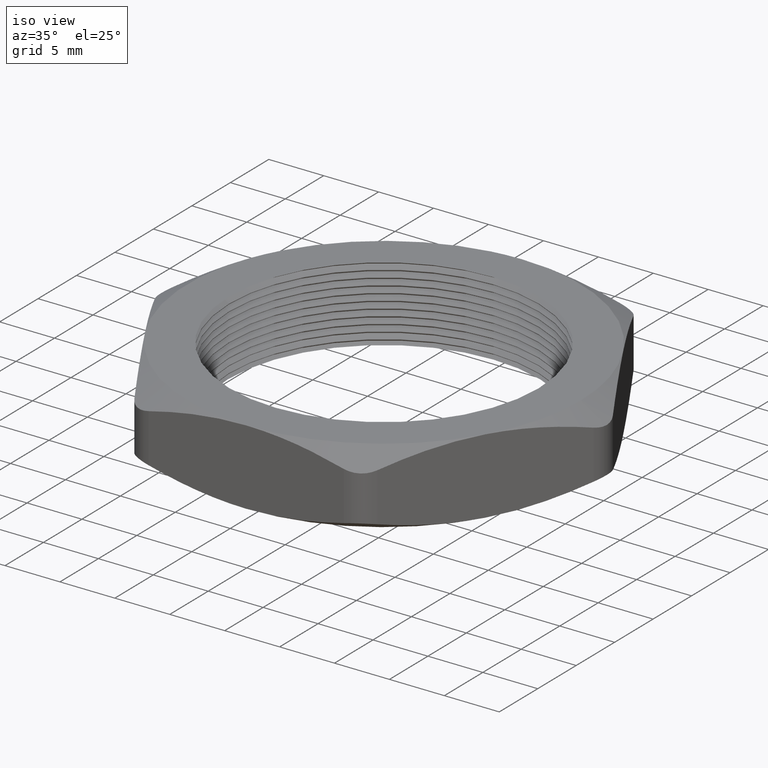
[diagram: clean part render]
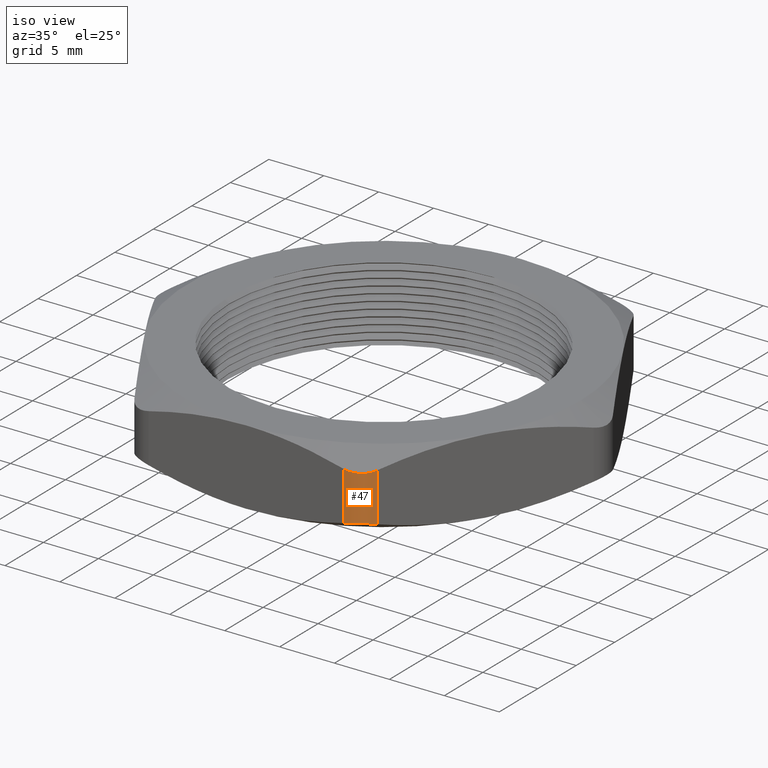
[diagram: same view with one face highlighted and labeled with its STEP entity id]
A machine part, iso view. The second image highlights one B-rep face of the part: STEP entity #47.
In plain terms, the highlighted cylindrical surface (edge-blend (fillet) strip) has radius 2.54 mm, axis along (0, 0, -1).
Its self-contained STEP definition (entity closure, byte-faithful):
#46 = EDGE_LOOP ( 'NONE', ( #650, #651, #592, #591 ) ) ;
#47 = ADVANCED_FACE ( 'NONE', ( #216 ), #208, .T. ) ;
#53 = EDGE_CURVE ( 'NONE', #55, #54, #200, .T. ) ;
#54 = VERTEX_POINT ( 'NONE', #252 ) ;
#55 = VERTEX_POINT ( 'NONE', #251 ) ;
#199 = CARTESIAN_POINT ( 'NONE',  ( 0.4358994532381674200, -0.6549999999999998000, 0.2700000000000000200 ) ) ;
#200 = LINE ( 'NONE', #199, #254 ) ;
#205 = DIRECTION ( 'NONE',  ( -1.000000000000000000, 0.0000000000000000000, 0.0000000000000000000 ) ) ;
#206 = DIRECTION ( 'NONE',  ( 0.0000000000000000000, 0.0000000000000000000, -1.000000000000000000 ) ) ;
#207 = AXIS2_PLACEMENT_3D ( 'NONE', #210, #206, #205 ) ;
#208 = CYLINDRICAL_SURFACE ( 'NONE', #207, 0.1000000000000000200 ) ;
#210 = CARTESIAN_POINT ( 'NONE',  ( 0.3492969128597235900, -0.6049999999999998700, 0.2700000000000000200 ) ) ;
#216 = FACE_OUTER_BOUND ( 'NONE', #46, .T. ) ;
#251 = CARTESIAN_POINT ( 'NONE',  ( 0.4358994532381674200, -0.6549999999999998000, 0.2227804186536114500 ) ) ;
#252 = CARTESIAN_POINT ( 'NONE',  ( 0.4358994532381674200, -0.6549999999999998000, 0.04721958134638851900 ) ) ;
#253 = DIRECTION ( 'NONE',  ( 0.0000000000000000000, 0.0000000000000000000, -1.000000000000000000 ) ) ;
#254 = VECTOR ( 'NONE', #253, 39.37007874015748100 ) ;
#591 = ORIENTED_EDGE ( 'NONE', *, *, #53, .F. ) ;
#592 = ORIENTED_EDGE ( 'NONE', *, *, #2654, .F. ) ;
#650 = ORIENTED_EDGE ( 'NONE', *, *, #2632, .F. ) ;
#651 = ORIENTED_EDGE ( 'NONE', *, *, #1021, .F. ) ;
#1019 = VERTEX_POINT ( 'NONE', #1937 ) ;
#1021 = EDGE_CURVE ( 'NONE', #1019, #1065, #1936, .T. ) ;
#1065 = VERTEX_POINT ( 'NONE', #1986 ) ;
#1933 = DIRECTION ( 'NONE',  ( 0.0000000000000000000, 0.0000000000000000000, 1.000000000000000000 ) ) ;
#1934 = VECTOR ( 'NONE', #1933, 39.37007874015748100 ) ;
#1935 = CARTESIAN_POINT ( 'NONE',  ( 0.3492969128597235900, -0.7049999999999998500, 0.2700000000000000200 ) ) ;
#1936 = LINE ( 'NONE', #1935, #1934 ) ;
#1937 = CARTESIAN_POINT ( 'NONE',  ( 0.3492969128597235900, -0.7049999999999998500, 0.04721958134638853200 ) ) ;
#1986 = CARTESIAN_POINT ( 'NONE',  ( 0.3492969128597236400, -0.7049999999999998500, 0.2227804186536115100 ) ) ;
#2326 = CARTESIAN_POINT ( 'NONE',  ( 0.4358994532381674200, -0.6549999999999998000, 0.2227804186536114500 ) ) ;
#2327 = CARTESIAN_POINT ( 'NONE',  ( 0.4315902156063464200, -0.6624638185202027500, 0.2205713585014353300 ) ) ;
#2328 = CARTESIAN_POINT ( 'NONE',  ( 0.4262432259899849900, -0.6694596057100815600, 0.2188516165337899800 ) ) ;
#2329 = CARTESIAN_POINT ( 'NONE',  ( 0.4139479278570426000, -0.6817855594005527400, 0.2165566018828658500 ) ) ;
#2330 = CARTESIAN_POINT ( 'NONE',  ( 0.4068387757242357700, -0.6872567730546108600, 0.2159598489262501100 ) ) ;
#2331 = CARTESIAN_POINT ( 'NONE',  ( 0.3916087413872633700, -0.6960326966640676400, 0.2159673461466406500 ) ) ;
#2332 = CARTESIAN_POINT ( 'NONE',  ( 0.3833911503325381800, -0.6994156119947603200, 0.2165617854518043800 ) ) ;
#2333 = CARTESIAN_POINT ( 'NONE',  ( 0.3664576599714353700, -0.7039051746662717800, 0.2188831182167220200 ) ) ;
#2334 = CARTESIAN_POINT ( 'NONE',  ( 0.3579128787185271200, -0.7049999999999996300, 0.2205720017040978000 ) ) ;
#2335 = CARTESIAN_POINT ( 'NONE',  ( 0.3492969128597236400, -0.7049999999999998500, 0.2227804186536115100 ) ) ;
#2340 = B_SPLINE_CURVE_WITH_KNOTS ( 'NONE', 3,
 ( #2335, #2334, #2333, #2332, #2331, #2330, #2329, #2328, #2327, #2326 ),
 .UNSPECIFIED., .F., .F.,
 ( 4, 2, 2, 2, 4 ),
 ( 1.734723475976806900E-018, 0.0006686882709469694700, 0.001337376541893937200, 0.002006064812840904900, 0.002674753083787872700 ),
 .UNSPECIFIED. ) ;
#2352 = CARTESIAN_POINT ( 'NONE',  ( 0.3492969128597235900, -0.7049999999999998500, 0.04721958134638853200 ) ) ;
#2353 = CARTESIAN_POINT ( 'NONE',  ( 0.3579153881233664300, -0.7050000000000002900, 0.04942864149856472700 ) ) ;
#2354 = CARTESIAN_POINT ( 'NONE',  ( 0.3666474123574520700, -0.7038672647533991100, 0.05114838346621008300 ) ) ;
#2355 = CARTESIAN_POINT ( 'NONE',  ( 0.3834696504457419400, -0.6993822010684033200, 0.05344339811713418700 ) ) ;
#2356 = CARTESIAN_POINT ( 'NONE',  ( 0.3917624365260919400, -0.6959611015490535500, 0.05404015107374989700 ) ) ;
#2357 = CARTESIAN_POINT ( 'NONE',  ( 0.4069776264820392800, -0.6871594667174543100, 0.05403265385335934800 ) ) ;
#2358 = CARTESIAN_POINT ( 'NONE',  ( 0.4140161126246333900, -0.6817342817714967500, 0.05343821454819566000 ) ) ;
#2359 = CARTESIAN_POINT ( 'NONE',  ( 0.4263709331305960400, -0.6693142302797985300, 0.05111688178327800100 ) ) ;
#2360 = CARTESIAN_POINT ( 'NONE',  ( 0.4315914703087654900, -0.6624616453118630200, 0.04942799829590204700 ) ) ;
#2361 = CARTESIAN_POINT ( 'NONE',  ( 0.4358994532381674200, -0.6549999999999998000, 0.04721958134638851900 ) ) ;
#2364 = B_SPLINE_CURVE_WITH_KNOTS ( 'NONE', 3,
 ( #2361, #2360, #2359, #2358, #2357, #2356, #2355, #2354, #2353, #2352 ),
 .UNSPECIFIED., .F., .F.,
 ( 4, 2, 2, 2, 4 ),
 ( 0.0000000000000000000, 0.0006686882709469680600, 0.001337376541893936100, 0.002006064812840904100, 0.002674753083787872200 ),
 .UNSPECIFIED. ) ;
#2632 = EDGE_CURVE ( 'NONE', #1065, #55, #2340, .T. ) ;
#2654 = EDGE_CURVE ( 'NONE', #54, #1019, #2364, .T. ) ;